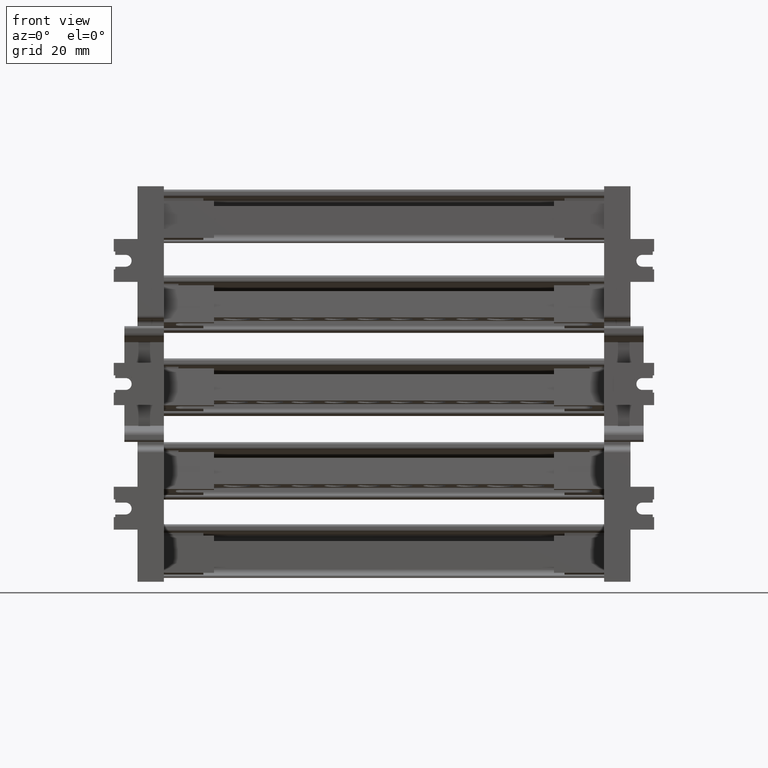
[diagram: clean part render]
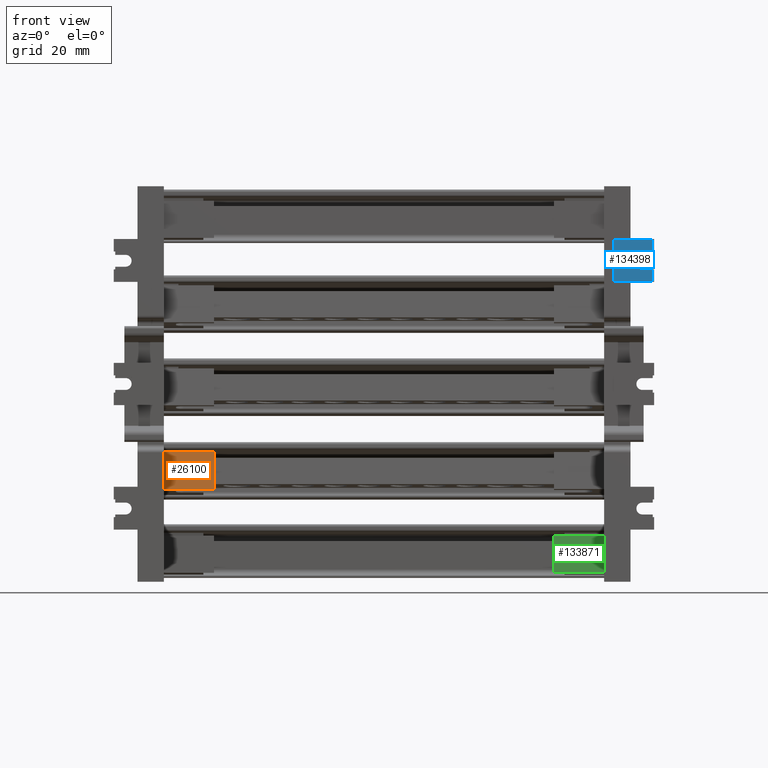
[diagram: same view with three faces highlighted in distinct colors, each labeled with its STEP entity id]
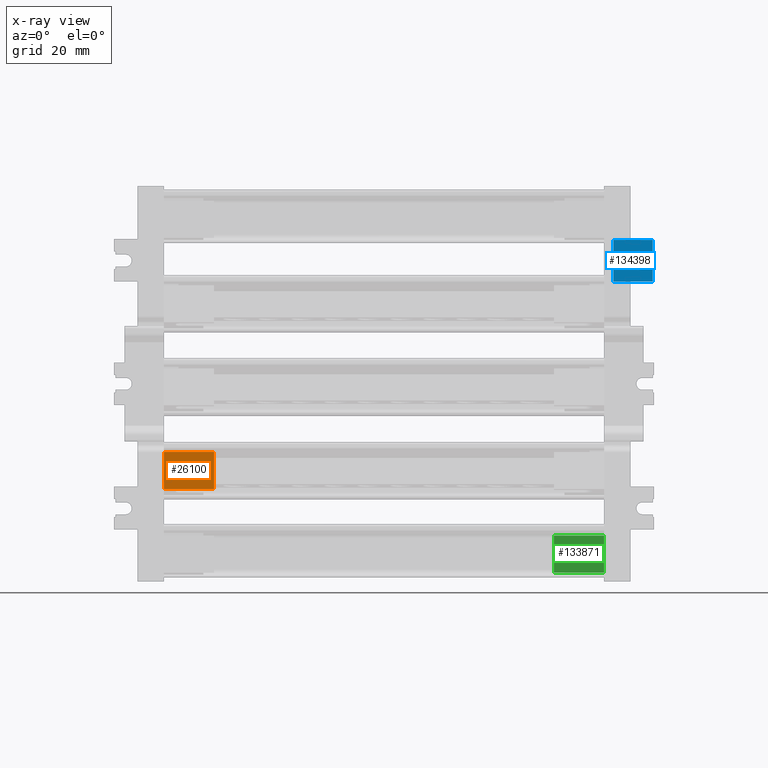
[diagram: x-ray of the same camera — body ghosted, the three highlighted faces saturated]
A machine part, front view with three faces highlighted in distinct colors.
The next image is the same camera in x-ray (body ghosted, the three faces saturated) — at least one of them is partly hidden behind the body in this view.
Their STEP definitions:

[orange] entity #26100 — the highlighted planar face has unit normal (-0, -0.9962, 0.0872).
#6998 = VECTOR ( 'NONE', #10678, 1000.000000000000000 ) ;
#7191 = VECTOR ( 'NONE', #120400, 1000.000000000000000 ) ;
#7248 = VECTOR ( 'NONE', #120441, 1000.000000000000000 ) ;
#10678 = DIRECTION ( 'NONE',  ( -1.000000000000000000, -3.514153745674577000E-016, -4.016696111307222900E-015 ) ) ;
#10690 = CARTESIAN_POINT ( 'NONE',  ( -39.12669808212513800, 140.6897676497035500, -386.7239473593341500 ) ) ;
#10732 = LINE ( 'NONE', #10690, #6998 ) ;
#26100 = ADVANCED_FACE ( 'NONE', ( #87333 ), #87347, .T. ) ;
#31014 = EDGE_CURVE ( 'NONE', #156294, #37700, #10732, .T. ) ;
#31217 = EDGE_CURVE ( 'NONE', #156294, #156319, #120415, .T. ) ;
#31237 = EDGE_CURVE ( 'NONE', #156319, #37500, #120470, .T. ) ;
#37500 = VERTEX_POINT ( 'NONE', #199631 ) ;
#37700 = VERTEX_POINT ( 'NONE', #199766 ) ;
#86758 = VECTOR ( 'NONE', #177719, 1000.000000000000100 ) ;
#87270 = CARTESIAN_POINT ( 'NONE',  ( -103.7847308000771400, 141.9172944007921400, -372.6932523913529300 ) ) ;
#87272 = DIRECTION ( 'NONE',  ( -2.466294295890854000E-015, -0.9961946980917455500, 0.08715574274765836000 ) ) ;
#87333 = FACE_OUTER_BOUND ( 'NONE', #195452, .T. ) ;
#87334 = DIRECTION ( 'NONE',  ( 0.0000000000000000000, -0.08715574274765836000, -0.9961946980917455500 ) ) ;
#87347 = PLANE ( 'NONE',  #225138 ) ;
#119783 = ORIENTED_EDGE ( 'NONE', *, *, #31014, .F. ) ;
#119876 = ORIENTED_EDGE ( 'NONE', *, *, #31217, .T. ) ;
#119880 = ORIENTED_EDGE ( 'NONE', *, *, #202327, .T. ) ;
#119890 = ORIENTED_EDGE ( 'NONE', *, *, #31237, .T. ) ;
#120400 = DIRECTION ( 'NONE',  ( -0.0000000000000000000, 0.08715574274765836000, 0.9961946980917455500 ) ) ;
#120415 = LINE ( 'NONE', #120421, #7191 ) ;
#120421 = CARTESIAN_POINT ( 'NONE',  ( -103.7847308000770000, 141.9172944007921400, -372.6932523913529300 ) ) ;
#120441 = DIRECTION ( 'NONE',  ( -1.000000000000000000, 2.456909301500383500E-015, -2.149517111926804900E-016 ) ) ;
#120465 = CARTESIAN_POINT ( 'NONE',  ( -103.7847308000771400, 141.9172944007921700, -372.6932523913526400 ) ) ;
#120470 = LINE ( 'NONE', #120465, #7248 ) ;
#156294 = VERTEX_POINT ( 'NONE', #218272 ) ;
#156319 = VERTEX_POINT ( 'NONE', #218445 ) ;
#177577 = LINE ( 'NONE', #177708, #86758 ) ;
#177708 = CARTESIAN_POINT ( 'NONE',  ( -122.8025006570834100, 141.9172944007922300, -372.6932523913526400 ) ) ;
#177719 = DIRECTION ( 'NONE',  ( 0.0000000000000000000, -0.08715574274766020600, -0.9961946980917453200 ) ) ;
#195452 = EDGE_LOOP ( 'NONE', ( #119783, #119876, #119890, #119880 ) ) ;
#199631 = CARTESIAN_POINT ( 'NONE',  ( -122.8025006570834100, 141.9172944007922300, -372.6932523913526400 ) ) ;
#199766 = CARTESIAN_POINT ( 'NONE',  ( -122.8025006570834300, 140.6897676497035300, -386.7239473593344900 ) ) ;
#202327 = EDGE_CURVE ( 'NONE', #37500, #37700, #177577, .T. ) ;
#218272 = CARTESIAN_POINT ( 'NONE',  ( -103.7847308000770000, 140.6897676497035300, -386.7239473593344300 ) ) ;
#218445 = CARTESIAN_POINT ( 'NONE',  ( -103.7847308000770400, 141.9172944007921700, -372.6932523913526400 ) ) ;
#225138 = AXIS2_PLACEMENT_3D ( 'NONE', #87270, #87272, #87334 ) ;

[blue] entity #134398 — the highlighted planar face has unit normal (0, 1, 0).
#5787 = DIRECTION ( 'NONE',  ( -0.0000000000000000000, 0.0000000000000000000, -1.000000000000000000 ) ) ;
#5823 = CARTESIAN_POINT ( 'NONE',  ( 62.64746846283501500, 74.68516386645208600, -292.2431131321286000 ) ) ;
#5830 = LINE ( 'NONE', #5823, #6649 ) ;
#6649 = VECTOR ( 'NONE', #5787, 1000.000000000000000 ) ;
#8682 = B_SPLINE_CURVE_WITH_KNOTS ( 'NONE', 3,
 ( #233508, #233479, #233466, #233480, #233463, #233467, #233459, #233484, #233461, #233462, #233514, #233512, #233464, #233499, #233500, #233497, #233481, #233488 ),
 .UNSPECIFIED., .F., .F.,
 ( 4, 2, 2, 2, 2, 2, 2, 2, 4 ),
 ( 0.0000000000000000000, 0.1250000000000000000, 0.2500000000000000000, 0.3750000000000000000, 0.5000000000000000000, 0.6250000000000000000, 0.7500000000000000000, 0.8750000000000000000, 1.000000000000000000 ),
 .UNSPECIFIED. ) ;
#28237 = EDGE_CURVE ( 'NONE', #156018, #156042, #233325, .T. ) ;
#28239 = EDGE_CURVE ( 'NONE', #156042, #160559, #233307, .T. ) ;
#28247 = EDGE_CURVE ( 'NONE', #156043, #156040, #233429, .T. ) ;
#28257 = EDGE_CURVE ( 'NONE', #156040, #156018, #8682, .T. ) ;
#28295 = EDGE_CURVE ( 'NONE', #160879, #160533, #233705, .T. ) ;
#30295 = EDGE_CURVE ( 'NONE', #160843, #156043, #5830, .T. ) ;
#86122 = VECTOR ( 'NONE', #158280, 1000.000000000000000 ) ;
#86159 = VECTOR ( 'NONE', #158198, 1000.000000000000000 ) ;
#88918 = FACE_OUTER_BOUND ( 'NONE', #214222, .T. ) ;
#88949 = PLANE ( 'NONE',  #111803 ) ;
#88958 = DIRECTION ( 'NONE',  ( 0.0000000000000000000, 1.000000000000000000, 0.0000000000000000000 ) ) ;
#89009 = DIRECTION ( 'NONE',  ( 0.0000000000000000000, -0.0000000000000000000, 1.000000000000000000 ) ) ;
#89011 = CARTESIAN_POINT ( 'NONE',  ( 47.64746846283503600, 74.68516386645208600, -292.2431131321286000 ) ) ;
#111803 = AXIS2_PLACEMENT_3D ( 'NONE', #89011, #88958, #89009 ) ;
#134398 = ADVANCED_FACE ( 'NONE', ( #88918 ), #88949, .F. ) ;
#156018 = VERTEX_POINT ( 'NONE', #216982 ) ;
#156040 = VERTEX_POINT ( 'NONE', #217072 ) ;
#156042 = VERTEX_POINT ( 'NONE', #217100 ) ;
#156043 = VERTEX_POINT ( 'NONE', #217105 ) ;
#157458 = ORIENTED_EDGE ( 'NONE', *, *, #30295, .F. ) ;
#157468 = ORIENTED_EDGE ( 'NONE', *, *, #28295, .T. ) ;
#157470 = ORIENTED_EDGE ( 'NONE', *, *, #28239, .F. ) ;
#157581 = ORIENTED_EDGE ( 'NONE', *, *, #28247, .F. ) ;
#157586 = ORIENTED_EDGE ( 'NONE', *, *, #184900, .T. ) ;
#157606 = ORIENTED_EDGE ( 'NONE', *, *, #28237, .F. ) ;
#157664 = ORIENTED_EDGE ( 'NONE', *, *, #184898, .F. ) ;
#157672 = ORIENTED_EDGE ( 'NONE', *, *, #28257, .F. ) ;
#158198 = DIRECTION ( 'NONE',  ( -1.000000000000000000, 0.0000000000000000000, -0.0000000000000000000 ) ) ;
#158214 = LINE ( 'NONE', #158255, #86159 ) ;
#158234 = CARTESIAN_POINT ( 'NONE',  ( 47.64746846283503600, 74.68516386645208600, -292.2431131321286000 ) ) ;
#158249 = LINE ( 'NONE', #158234, #86122 ) ;
#158255 = CARTESIAN_POINT ( 'NONE',  ( 47.64746846283503600, 74.68516386645208600, -308.0431131321285500 ) ) ;
#158280 = DIRECTION ( 'NONE',  ( -1.000000000000000000, 0.0000000000000000000, -0.0000000000000000000 ) ) ;
#160533 = VERTEX_POINT ( 'NONE', #221404 ) ;
#160559 = VERTEX_POINT ( 'NONE', #221548 ) ;
#160843 = VERTEX_POINT ( 'NONE', #221707 ) ;
#160879 = VERTEX_POINT ( 'NONE', #221662 ) ;
#184898 = EDGE_CURVE ( 'NONE', #160559, #160533, #158214, .T. ) ;
#184900 = EDGE_CURVE ( 'NONE', #160843, #160879, #158249, .T. ) ;
#191600 = VECTOR ( 'NONE', #233723, 1000.000000000000000 ) ;
#192924 = VECTOR ( 'NONE', #233313, 1000.000000000000000 ) ;
#193003 = VECTOR ( 'NONE', #233376, 1000.000000000000000 ) ;
#193091 = VECTOR ( 'NONE', #233430, 1000.000000000000000 ) ;
#214222 = EDGE_LOOP ( 'NONE', ( #157672, #157581, #157458, #157586, #157468, #157664, #157470, #157606 ) ) ;
#216982 = CARTESIAN_POINT ( 'NONE',  ( 58.34746846283501800, 74.68516386645208600, -303.3431131321285600 ) ) ;
#217072 = CARTESIAN_POINT ( 'NONE',  ( 58.34746846283501800, 74.68516386645208600, -296.9431131321285900 ) ) ;
#217100 = CARTESIAN_POINT ( 'NONE',  ( 62.64746846283501500, 74.68516386645208600, -303.3431131321285600 ) ) ;
#217105 = CARTESIAN_POINT ( 'NONE',  ( 62.64746846283501500, 74.68516386645208600, -296.9431131321285900 ) ) ;
#221404 = CARTESIAN_POINT ( 'NONE',  ( 47.64746846283503600, 74.68516386645208600, -308.0431131321285500 ) ) ;
#221548 = CARTESIAN_POINT ( 'NONE',  ( 62.64746846283501500, 74.68516386645208600, -308.0431131321285500 ) ) ;
#221662 = CARTESIAN_POINT ( 'NONE',  ( 47.64746846283503600, 74.68516386645208600, -292.2431131321286000 ) ) ;
#221707 = CARTESIAN_POINT ( 'NONE',  ( 62.64746846283501500, 74.68516386645208600, -292.2431131321286000 ) ) ;
#233307 = LINE ( 'NONE', #233367, #193003 ) ;
#233313 = DIRECTION ( 'NONE',  ( 1.000000000000000000, 0.0000000000000000000, -0.0000000000000000000 ) ) ;
#233325 = LINE ( 'NONE', #233327, #192924 ) ;
#233327 = CARTESIAN_POINT ( 'NONE',  ( 47.64746846283503600, 74.68516386645208600, -303.3431131321285600 ) ) ;
#233367 = CARTESIAN_POINT ( 'NONE',  ( 62.64746846283501500, 74.68516386645208600, -292.2431131321286000 ) ) ;
#233376 = DIRECTION ( 'NONE',  ( -0.0000000000000000000, 0.0000000000000000000, -1.000000000000000000 ) ) ;
#233429 = LINE ( 'NONE', #233437, #193091 ) ;
#233430 = DIRECTION ( 'NONE',  ( -1.000000000000000000, -0.0000000000000000000, 0.0000000000000000000 ) ) ;
#233437 = CARTESIAN_POINT ( 'NONE',  ( 47.64746846283503600, 74.68516386645208600, -296.9431131321285900 ) ) ;
#233459 = CARTESIAN_POINT ( 'NONE',  ( 55.55135202010141900, 74.68516386645208600, -298.5315323949416200 ) ) ;
#233461 = CARTESIAN_POINT ( 'NONE',  ( 55.14746846283504300, 74.68516386645208600, -299.7242341116499300 ) ) ;
#233462 = CARTESIAN_POINT ( 'NONE',  ( 55.14746846283502200, 74.68516386645211500, -300.5619921526072200 ) ) ;
#233463 = CARTESIAN_POINT ( 'NONE',  ( 56.38091895891530200, 74.68516386645208600, -297.5841792364543600 ) ) ;
#233464 = CARTESIAN_POINT ( 'NONE',  ( 55.78853456716086600, 74.68516386645208600, -302.1096626360483100 ) ) ;
#233466 = CARTESIAN_POINT ( 'NONE',  ( 57.50987523288532800, 74.68516386645208600, -297.0264005667900200 ) ) ;
#233467 = CARTESIAN_POINT ( 'NONE',  ( 55.78853456716085200, 74.68516386645211500, -298.1765636282088400 ) ) ;
#233479 = CARTESIAN_POINT ( 'NONE',  ( 57.92858944235638300, 74.68516386645208600, -296.9431131321287000 ) ) ;
#233480 = CARTESIAN_POINT ( 'NONE',  ( 56.73588772564814800, 74.68516386645208600, -297.3469966893948700 ) ) ;
#233481 = CARTESIAN_POINT ( 'NONE',  ( 57.92858944235638300, 74.68516386645208600, -303.3431131321285600 ) ) ;
#233484 = CARTESIAN_POINT ( 'NONE',  ( 55.23075589749642900, 74.68516386645211500, -299.3055199021789600 ) ) ;
#233488 = CARTESIAN_POINT ( 'NONE',  ( 58.34746846283501800, 74.68516386645208600, -303.3431131321285600 ) ) ;
#233497 = CARTESIAN_POINT ( 'NONE',  ( 57.50987523288532800, 74.68516386645211500, -303.2598256974671900 ) ) ;
#233499 = CARTESIAN_POINT ( 'NONE',  ( 56.38091895891530200, 74.68516386645211500, -302.7020470278028500 ) ) ;
#233500 = CARTESIAN_POINT ( 'NONE',  ( 56.73588772564815500, 74.68516386645208600, -302.9392295748621700 ) ) ;
#233508 = CARTESIAN_POINT ( 'NONE',  ( 58.34746846283501800, 74.68516386645208600, -296.9431131321285900 ) ) ;
#233512 = CARTESIAN_POINT ( 'NONE',  ( 55.55135202010141200, 74.68516386645211500, -301.7546938693154200 ) ) ;
#233514 = CARTESIAN_POINT ( 'NONE',  ( 55.23075589749642200, 74.68516386645208600, -300.9807063620781900 ) ) ;
#233705 = LINE ( 'NONE', #233734, #191600 ) ;
#233723 = DIRECTION ( 'NONE',  ( 0.0000000000000000000, 0.0000000000000000000, -1.000000000000000000 ) ) ;
#233734 = CARTESIAN_POINT ( 'NONE',  ( 47.64746846283503600, 74.68516386645208600, -292.2431131321286000 ) ) ;

[green] entity #133871 — the highlighted planar face has unit normal (0, -1, 0).
#27357 = EDGE_CURVE ( 'NONE', #155891, #155854, #74496, .T. ) ;
#27360 = EDGE_CURVE ( 'NONE', #160398, #155854, #74422, .T. ) ;
#27561 = EDGE_CURVE ( 'NONE', #160374, #155891, #83305, .T. ) ;
#58266 = B_SPLINE_CURVE_WITH_KNOTS ( 'NONE', 3,
 ( #152521, #152529, #152533, #152550 ),
 .UNSPECIFIED., .F., .F.,
 ( 4, 4 ),
 ( 0.0000000000000000000, 1.000000000000000000 ),
 .UNSPECIFIED. ) ;
#74400 = DIRECTION ( 'NONE',  ( 0.0000000000000000000, -0.0000000000000000000, -1.000000000000000000 ) ) ;
#74416 = CARTESIAN_POINT ( 'NONE',  ( -39.47855027269509500, 155.6865240004025000, -418.4759638254447500 ) ) ;
#74422 = LINE ( 'NONE', #74416, #192022 ) ;
#74424 = DIRECTION ( 'NONE',  ( -1.000000000000000000, 5.068704759406099000E-028, -3.488013914158865400E-015 ) ) ;
#74481 = CARTESIAN_POINT ( 'NONE',  ( 25.17948244525673500, 155.6865240004025000, -404.3916738820649400 ) ) ;
#74496 = LINE ( 'NONE', #74481, #192025 ) ;
#83305 = LINE ( 'NONE', #83406, #192252 ) ;
#83373 = DIRECTION ( 'NONE',  ( -1.000000000000000000, -0.0000000000000000000, -0.0000000000000000000 ) ) ;
#83406 = CARTESIAN_POINT ( 'NONE',  ( 25.17948244525677000, 155.6865240004025000, -404.3916738459212200 ) ) ;
#84061 = DIRECTION ( 'NONE',  ( 0.0000000000000000000, -1.000000000000000000, 0.0000000000000000000 ) ) ;
#84064 = DIRECTION ( 'NONE',  ( 0.0000000000000000000, -0.0000000000000000000, -1.000000000000000000 ) ) ;
#84123 = CARTESIAN_POINT ( 'NONE',  ( 25.17948244525677000, 155.6865240004025000, -404.3916738820649400 ) ) ;
#84139 = FACE_OUTER_BOUND ( 'NONE', #213662, .T. ) ;
#84158 = PLANE ( 'NONE',  #111459 ) ;
#99991 = ORIENTED_EDGE ( 'NONE', *, *, #27357, .T. ) ;
#100003 = ORIENTED_EDGE ( 'NONE', *, *, #184835, .F. ) ;
#100040 = ORIENTED_EDGE ( 'NONE', *, *, #27561, .T. ) ;
#100046 = ORIENTED_EDGE ( 'NONE', *, *, #27360, .F. ) ;
#111459 = AXIS2_PLACEMENT_3D ( 'NONE', #84123, #84061, #84064 ) ;
#133871 = ADVANCED_FACE ( 'NONE', ( #84139 ), #84158, .T. ) ;
#152521 = CARTESIAN_POINT ( 'NONE',  ( 44.19725230226220700, 155.6865240004025000, -404.3916738531498300 ) ) ;
#152529 = CARTESIAN_POINT ( 'NONE',  ( 44.19725230226220000, 155.6865240004025000, -409.0864371724290400 ) ) ;
#152533 = CARTESIAN_POINT ( 'NONE',  ( 44.19725230226220000, 155.6865240004025000, -413.7812004989368100 ) ) ;
#152550 = CARTESIAN_POINT ( 'NONE',  ( 44.19725230226220000, 155.6865240004025000, -418.4759638254445800 ) ) ;
#155854 = VERTEX_POINT ( 'NONE', #216427 ) ;
#155891 = VERTEX_POINT ( 'NONE', #216508 ) ;
#160374 = VERTEX_POINT ( 'NONE', #221265 ) ;
#160398 = VERTEX_POINT ( 'NONE', #221340 ) ;
#184835 = EDGE_CURVE ( 'NONE', #160374, #160398, #58266, .T. ) ;
#192022 = VECTOR ( 'NONE', #74424, 1000.000000000000000 ) ;
#192025 = VECTOR ( 'NONE', #74400, 1000.000000000000000 ) ;
#192252 = VECTOR ( 'NONE', #83373, 1000.000000000000000 ) ;
#213662 = EDGE_LOOP ( 'NONE', ( #100046, #100003, #100040, #99991 ) ) ;
#216427 = CARTESIAN_POINT ( 'NONE',  ( 25.17948244525676300, 155.6865240004025000, -418.4759638254445800 ) ) ;
#216508 = CARTESIAN_POINT ( 'NONE',  ( 25.17948244525673500, 155.6865240004025000, -404.3916738579689000 ) ) ;
#221265 = CARTESIAN_POINT ( 'NONE',  ( 44.19725230226220700, 155.6865240004025000, -404.3916738531498300 ) ) ;
#221340 = CARTESIAN_POINT ( 'NONE',  ( 44.19725230226220000, 155.6865240004025000, -418.4759638254445800 ) ) ;